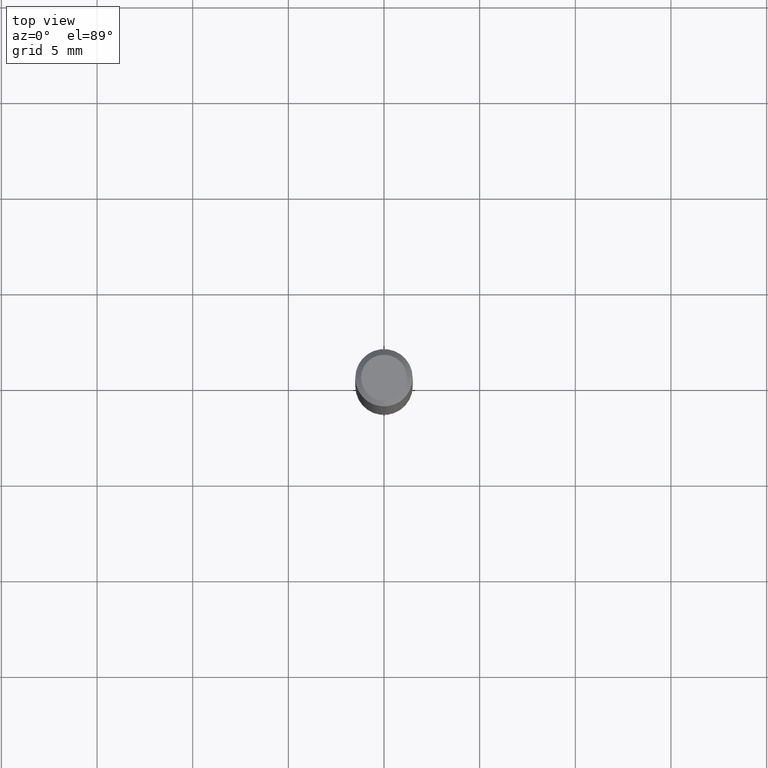
[diagram: clean part render]
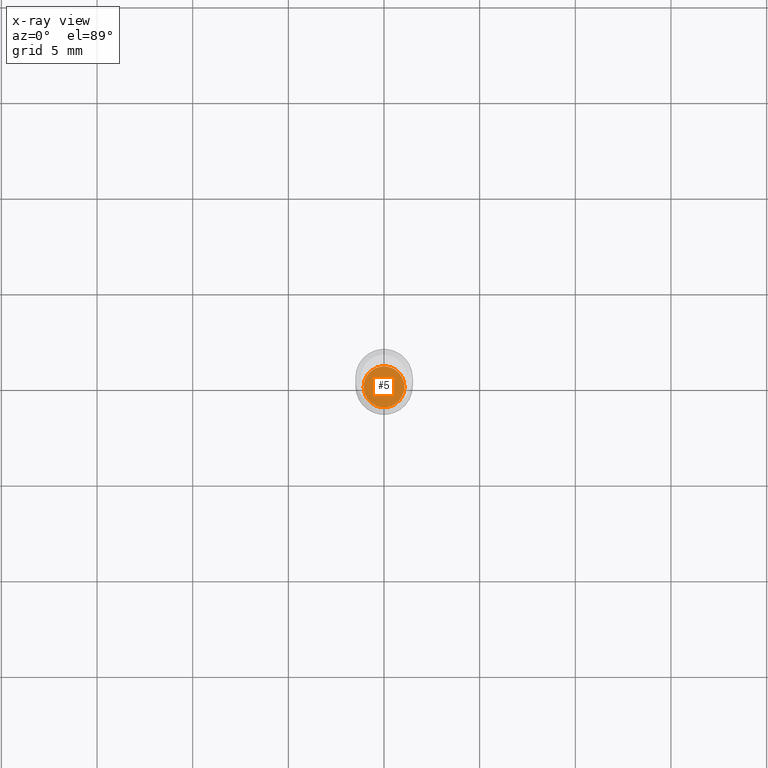
[diagram: x-ray — body ghosted, one internal face saturated and labeled with its STEP entity id]
A machine part, top view, then the same camera in x-ray: the body is ghosted and one INTERNAL B-rep face — a face not visible from any outside direction — is saturated and labeled: STEP entity #5.
In plain terms, the highlighted planar face has unit normal (-0, 0, 1).
Its self-contained STEP definition (entity closure, byte-faithful):
#5 = ADVANCED_FACE ( 'NONE', ( #406 ), #180, .F. ) ;
#81 = VERTEX_POINT ( 'NONE', #380 ) ;
#112 = CIRCLE ( 'NONE', #428, 0.04199999999999999567 ) ;
#123 = CARTESIAN_POINT ( 'NONE',  ( 2.676565608369631794E-29, -3.821426325363822773E-15, -1.094499999999999806 ) ) ;
#125 = AXIS2_PLACEMENT_3D ( 'NONE', #480, #147, #340 ) ;
#126 = ORIENTED_EDGE ( 'NONE', *, *, #141, .F. ) ;
#141 = EDGE_CURVE ( 'NONE', #195, #81, #168, .T. ) ;
#144 = AXIS2_PLACEMENT_3D ( 'NONE', #283, #365, #417 ) ;
#147 = DIRECTION ( 'NONE',  ( -2.445468806185136597E-29, 3.491481338843145583E-15, 1.000000000000000000 ) ) ;
#157 = CARTESIAN_POINT ( 'NONE',  ( 0.04199999999999999567, -4.114710757826645628E-15, -1.094499999999999806 ) ) ;
#161 = DIRECTION ( 'NONE',  ( -2.445468806185136597E-29, 3.491481338843145583E-15, 1.000000000000000000 ) ) ;
#168 = CIRCLE ( 'NONE', #125, 0.04199999999999999567 ) ;
#180 = PLANE ( 'NONE',  #144 ) ;
#195 = VERTEX_POINT ( 'NONE', #157 ) ;
#235 = ORIENTED_EDGE ( 'NONE', *, *, #361, .F. ) ;
#283 = CARTESIAN_POINT ( 'NONE',  ( 2.676565608369631794E-29, -3.821426325363822773E-15, -1.094499999999999806 ) ) ;
#340 = DIRECTION ( 'NONE',  ( 1.000000000000000000, -6.982962677686263555E-15, 0.000000000000000000 ) ) ;
#361 = EDGE_CURVE ( 'NONE', #81, #195, #112, .T. ) ;
#365 = DIRECTION ( 'NONE',  ( -2.438088387897960049E-29, 3.491481338843145188E-15, 1.000000000000000000 ) ) ;
#370 = EDGE_LOOP ( 'NONE', ( #126, #235 ) ) ;
#380 = CARTESIAN_POINT ( 'NONE',  ( -0.04199999999999999567, -3.520349149170469624E-15, -1.094499999999999806 ) ) ;
#406 = FACE_OUTER_BOUND ( 'NONE', #370, .T. ) ;
#417 = DIRECTION ( 'NONE',  ( 1.000000000000000000, -6.982962677686265922E-15, 4.876176775795935793E-29 ) ) ;
#428 = AXIS2_PLACEMENT_3D ( 'NONE', #123, #161, #441 ) ;
#441 = DIRECTION ( 'NONE',  ( 1.000000000000000000, -6.982962677686263555E-15, 0.000000000000000000 ) ) ;
#480 = CARTESIAN_POINT ( 'NONE',  ( 2.676565608369631794E-29, -3.821426325363822773E-15, -1.094499999999999806 ) ) ;